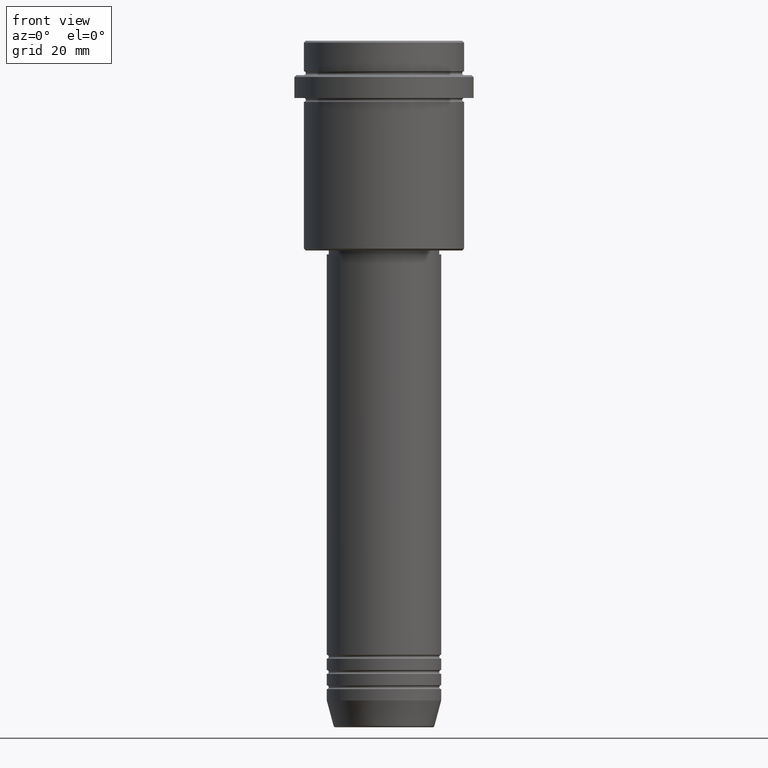
[diagram: clean part render]
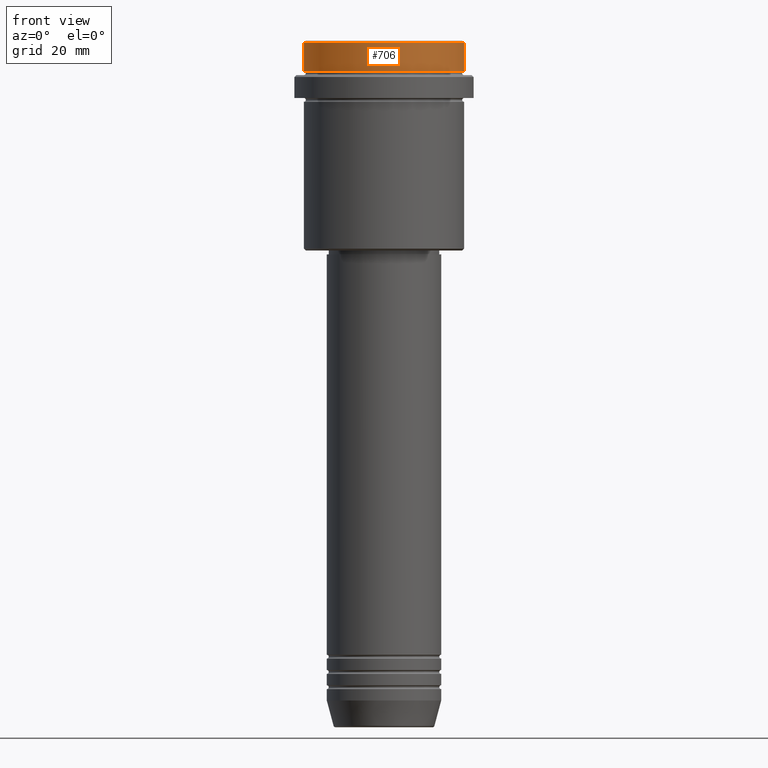
[diagram: same view with one face highlighted and labeled with its STEP entity id]
A machine part, front view. The second image highlights one B-rep face of the part: STEP entity #706.
In plain terms, the highlighted cylindrical surface (partial cylindrical patch) has radius 21 mm, axis along (-0, -0, 1).
Its self-contained STEP definition (entity closure, byte-faithful):
#54 = FACE_OUTER_BOUND ( 'NONE', #1336, .T. ) ;
#75 = DIRECTION ( 'NONE',  ( 1.000000000000000000, 0.000000000000000000, 0.000000000000000000 ) ) ;
#96 = ORIENTED_EDGE ( 'NONE', *, *, #553, .F. ) ;
#120 = DIRECTION ( 'NONE',  ( -0.000000000000000000, -0.000000000000000000, 1.000000000000000000 ) ) ;
#129 = DIRECTION ( 'NONE',  ( 1.000000000000000000, 0.000000000000000000, 0.000000000000000000 ) ) ;
#154 = ORIENTED_EDGE ( 'NONE', *, *, #1159, .T. ) ;
#232 = CARTESIAN_POINT ( 'NONE',  ( -21.00000000000000000, 2.571758278209441661E-15, -0.5000000000000108802 ) ) ;
#235 = LINE ( 'NONE', #874, #1191 ) ;
#243 = CARTESIAN_POINT ( 'NONE',  ( 0.000000000000000000, 0.000000000000000000, -7.999999999999998224 ) ) ;
#259 = DIRECTION ( 'NONE',  ( -0.000000000000000000, -0.000000000000000000, 1.000000000000000000 ) ) ;
#271 = LINE ( 'NONE', #928, #869 ) ;
#372 = CARTESIAN_POINT ( 'NONE',  ( 0.000000000000000000, 0.000000000000000000, -0.5000000000000108802 ) ) ;
#385 = CARTESIAN_POINT ( 'NONE',  ( 21.00000000000000000, 0.000000000000000000, -7.999999999999998224 ) ) ;
#469 = CARTESIAN_POINT ( 'NONE',  ( 21.00000000000000000, 0.000000000000000000, -0.5000000000000108802 ) ) ;
#538 = CIRCLE ( 'NONE', #1169, 21.00000000000000000 ) ;
#553 = EDGE_CURVE ( 'NONE', #1152, #948, #235, .T. ) ;
#605 = EDGE_CURVE ( 'NONE', #1152, #653, #538, .T. ) ;
#653 = VERTEX_POINT ( 'NONE', #385 ) ;
#675 = DIRECTION ( 'NONE',  ( -0.000000000000000000, -0.000000000000000000, 1.000000000000000000 ) ) ;
#706 = ADVANCED_FACE ( 'NONE', ( #54 ), #1237, .T. ) ;
#718 = CARTESIAN_POINT ( 'NONE',  ( 0.000000000000000000, 0.000000000000000000, 0.000000000000000000 ) ) ;
#719 = VERTEX_POINT ( 'NONE', #469 ) ;
#760 = ORIENTED_EDGE ( 'NONE', *, *, #605, .T. ) ;
#761 = EDGE_CURVE ( 'NONE', #719, #948, #1010, .T. ) ;
#778 = AXIS2_PLACEMENT_3D ( 'NONE', #372, #811, #75 ) ;
#796 = DIRECTION ( 'NONE',  ( 1.000000000000000000, 0.000000000000000000, 0.000000000000000000 ) ) ;
#811 = DIRECTION ( 'NONE',  ( 0.000000000000000000, 0.000000000000000000, -1.000000000000000000 ) ) ;
#821 = CARTESIAN_POINT ( 'NONE',  ( -21.00000000000000000, 2.571758278209441661E-15, -7.999999999999998224 ) ) ;
#869 = VECTOR ( 'NONE', #259, 1000.000000000000000 ) ;
#874 = CARTESIAN_POINT ( 'NONE',  ( -21.00000000000000000, 2.571758278209441661E-15, 0.000000000000000000 ) ) ;
#928 = CARTESIAN_POINT ( 'NONE',  ( 21.00000000000000000, 0.000000000000000000, 0.000000000000000000 ) ) ;
#948 = VERTEX_POINT ( 'NONE', #232 ) ;
#1010 = CIRCLE ( 'NONE', #778, 21.00000000000000000 ) ;
#1152 = VERTEX_POINT ( 'NONE', #821 ) ;
#1157 = DIRECTION ( 'NONE',  ( -0.000000000000000000, -0.000000000000000000, 1.000000000000000000 ) ) ;
#1159 = EDGE_CURVE ( 'NONE', #653, #719, #271, .T. ) ;
#1169 = AXIS2_PLACEMENT_3D ( 'NONE', #243, #675, #129 ) ;
#1191 = VECTOR ( 'NONE', #120, 1000.000000000000000 ) ;
#1215 = AXIS2_PLACEMENT_3D ( 'NONE', #718, #1157, #796 ) ;
#1237 = CYLINDRICAL_SURFACE ( 'NONE', #1215, 21.00000000000000000 ) ;
#1336 = EDGE_LOOP ( 'NONE', ( #96, #760, #154, #1339 ) ) ;
#1339 = ORIENTED_EDGE ( 'NONE', *, *, #761, .T. ) ;